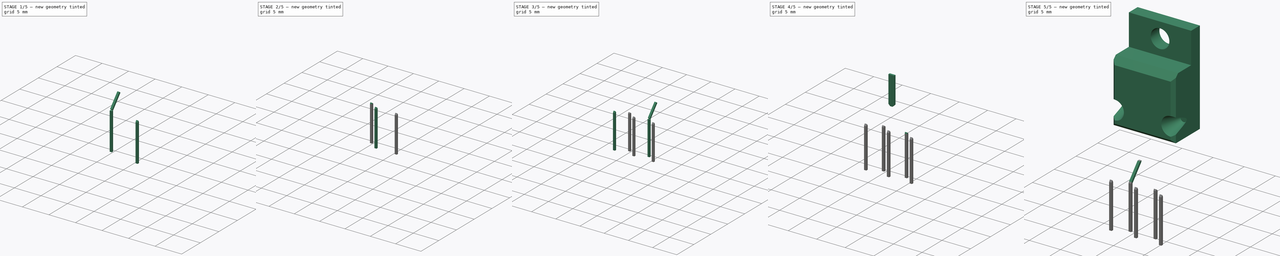
[diagram: build sequence overview — one tinted view per stage of 5, left to right]
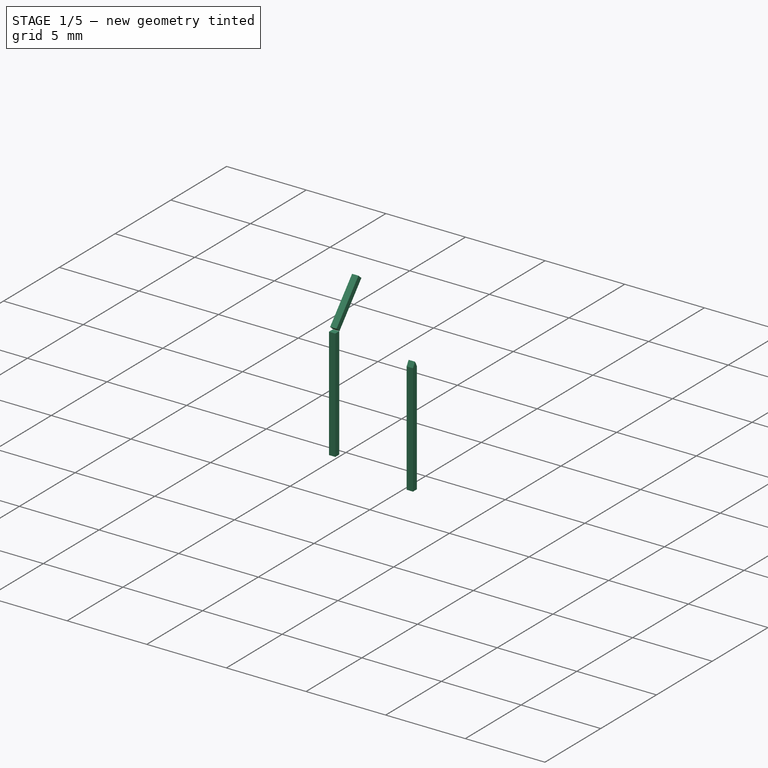
[diagram: stage 1 of 5 — iso view after this stage's code; geometry added in this stage tinted green]
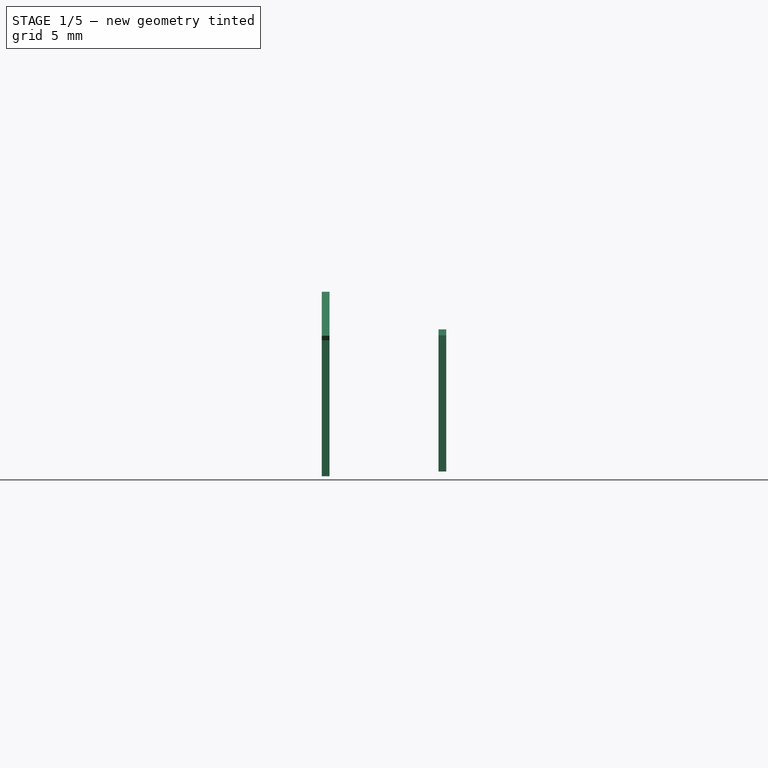
[diagram: stage 1 of 5 — front view after this stage's code; geometry added in this stage tinted green]
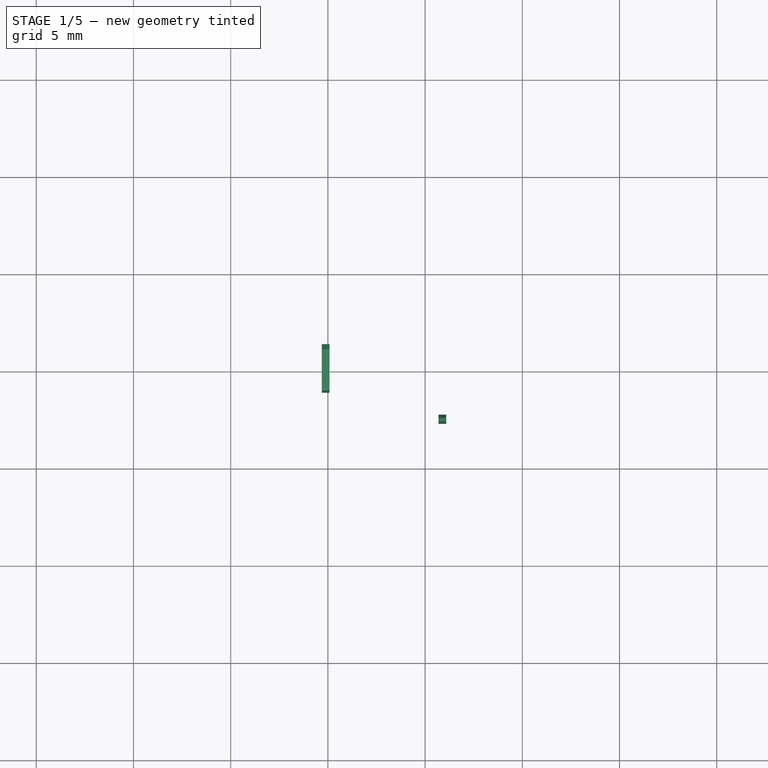
[diagram: stage 1 of 5 — top view after this stage's code; geometry added in this stage tinted green]
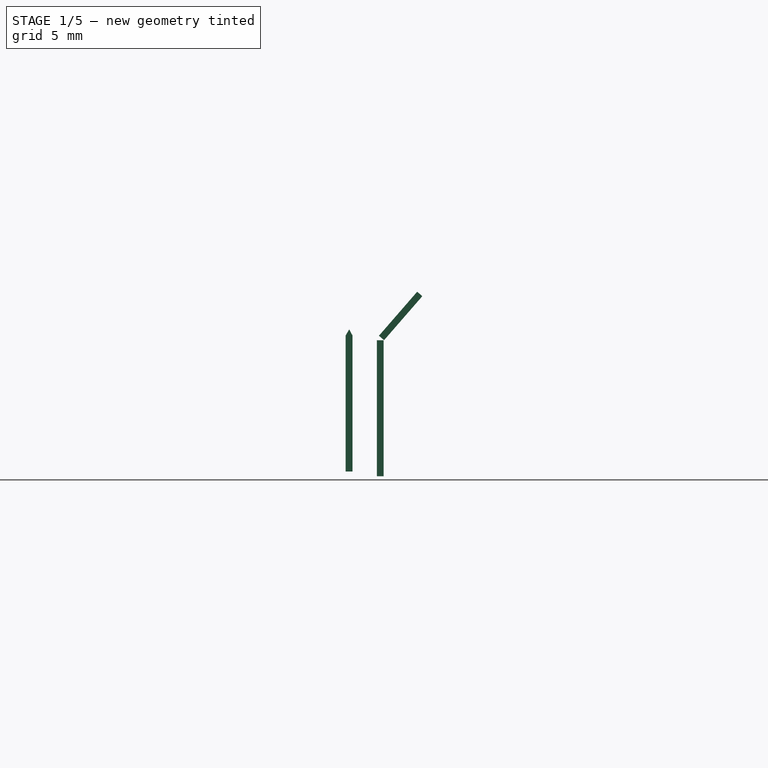
[diagram: stage 1 of 5 — right view after this stage's code; geometry added in this stage tinted green]
FCSTD DOCUMENT  (FreeCAD 1.0R39319 (Git))
Label: microshem(TDA2003)
License: All rights reserved
LicenseURL: https://en.wikipedia.org/wiki/All_rights_reserved
objects: PartDesign::Body×17, PartDesign::AdditiveBox×16, PartDesign::Chamfer×14, PartDesign::AdditiveLoft×10, PartDesign::SubtractiveCone×2, Sketcher::SketchObject×1, PartDesign::Pad×1
note: 148 computed .brp shape members not serialized (recipe doc carries the construction recipe); baked Part::Feature solids carry a one-line shape summary decoded from their .brp

FEATURE [PartDesign::Body] Body001  label="Тіло"
  AllowCompound = false
  Group = -> [Box,Chamfer,Chamfer001,Chamfer002,Chamfer003,Cone,Cone001]
  Origin = -> Origin001
  Tip = -> Cone001
FEATURE [PartDesign::AdditiveBox] Box001
  AttacherType = Attacher::AttachEngine3D
  AttachmentOffset = pos=(-4,-5,-1.5) rot=(0,0,1;0rad)
  AttachmentSupport = -> [Cone001]
  Height = 1
  Length = 0.35
  MapMode = 7
  Placement = pos=(-9.61401,-4,37.4328) rot=(0.57735,0.57735,0.57735;2.0944rad)
  Refine = true
  Suppressed = false
  Width = 5
FEATURE [PartDesign::Chamfer] Chamfer004
  Angle = 45
  Base = -> Box001 [Edge10]
  BaseFeature = -> Box001
  ChamferType = 0
  FlipDirection = false
  Placement = pos=(-9.61401,-4,37.4328) rot=(0.57735,0.57735,0.57735;2.0944rad)
  Refine = true
  Size = 0.3
  Size2 = 1
  SupportTransform = false
  Suppressed = false
  UseAllEdges = false
FEATURE [PartDesign::Chamfer] Chamfer005
  Angle = 45
  Base = -> Chamfer004 [Edge8]
  BaseFeature = -> Chamfer004
  ChamferType = 0
  FlipDirection = false
  Placement = pos=(-9.61401,-4,37.4328) rot=(0.57735,0.57735,0.57735;2.0944rad)
  Refine = true
  Size = 0.3
  Size2 = 1
  SupportTransform = false
  Suppressed = false
  UseAllEdges = false
FEATURE [PartDesign::Body] Body008  label="Тіло007"
  AllowCompound = false
  Group = -> [Box007,AdditiveLoft001]
  Origin = -> Origin008
  Tip = -> AdditiveLoft001
FEATURE [PartDesign::AdditiveBox] Box008
  AttacherType = Attacher::AttachEngine3D
  AttachmentOffset = pos=(0,0.3,0) rot=(0,-1,0;1.06465rad)
  AttachmentSupport = -> [Chamfer005]
  Height = 4
  Length = 0.35
  MapMode = 5
  Placement = pos=(-9.31401,-4,37.4328) rot=(0.652748,0.652748,-0.384498;2.40745rad)
  Refine = true
  Suppressed = false
  Width = 0.4
FEATURE [PartDesign::AdditiveLoft] AdditiveLoft002
  BaseFeature = -> Box008
  Closed = false
  Placement = pos=(-9.31401,-4,37.4328) rot=(0.652748,0.652748,-0.384498;2.40745rad)
  Profile = -> Box008 [Face5]
  Refine = true
  Ruled = false
  Sections = -> [Chamfer005]
  Suppressed = false
FEATURE [PartDesign::Body] Body009  label="Тіло008"
  AllowCompound = false
  Group = -> [Box008,AdditiveLoft002]
  Origin = -> Origin009
FEATURE [PartDesign::AdditiveBox] Box010
  AttacherType = Attacher::AttachEngine3D
  AttachmentOffset = pos=(0.35,0,-0.4) rot=(0,0,-1;2.42601rad)
  AttachmentSupport = -> [Chamfer011]
  Height = 0.4
  Length = 0.35
  MapMode = 7
  Placement = pos=(-14.914,-4,37.4328) rot=(0.673025,0.306715,-0.673025;3.7368rad)
  Refine = true
  Suppressed = false
  Width = 3
FEATURE [PartDesign::Body] Body014  label="Тіло013"
  AllowCompound = false
  Group = -> [Box014,AdditiveLoft008]
  Origin = -> Origin014
  Tip = -> AdditiveLoft008
FEATURE [PartDesign::AdditiveBox] Box015
  AttacherType = Attacher::AttachEngine3D
  AttachmentOffset = pos=(-0.37,-7,-0.4) rot=(0,0,1;0rad)
  AttachmentSupport = -> [Box010]
  Height = 0.4
  Length = 0.35
  MapMode = 7
  Placement = pos=(-15.314,-6.07403,27.9391) rot=(0.57735,0.57735,0.57735;2.0944rad)
  Refine = true
  Suppressed = false
  Width = 7
FEATURE [PartDesign::Body] Body015  label="Тіло014"
  AllowCompound = false
  Group = -> [Box015,AdditiveLoft009]
  Origin = -> Origin015
  Tip = -> AdditiveLoft009
FEATURE [PartDesign::AdditiveBox] Box016
  AttacherType = Attacher::AttachEngine3D
  AttachmentOffset = pos=(0,-7,-0.4) rot=(0,0,1;0rad)
  AttachmentSupport = -> [AdditiveLoft002]
  Height = 0.4
  Length = 0.35
  MapMode = 7
  Placement = pos=(-8.91401,-7.3288,28.1875) rot=(0.57735,-0.57735,-0.57735;2.0944rad)
  Refine = true
  Suppressed = false
  Width = 7
FEATURE [PartDesign::AdditiveLoft] AdditiveLoft010
  BaseFeature = -> Box016
  Closed = false
  Placement = pos=(-8.91401,-7.3288,28.1875) rot=(0.57735,-0.57735,-0.57735;2.0944rad)
  Profile = -> Box016 [Face4]
  Refine = true
  Ruled = false
  Sections = -> [AdditiveLoft002]
  Suppressed = false
FEATURE [PartDesign::Body] Body016  label="Тіло015"
  AllowCompound = false
  Group = -> [Box016,AdditiveLoft010]
  Origin = -> Origin016
  Tip = -> AdditiveLoft010
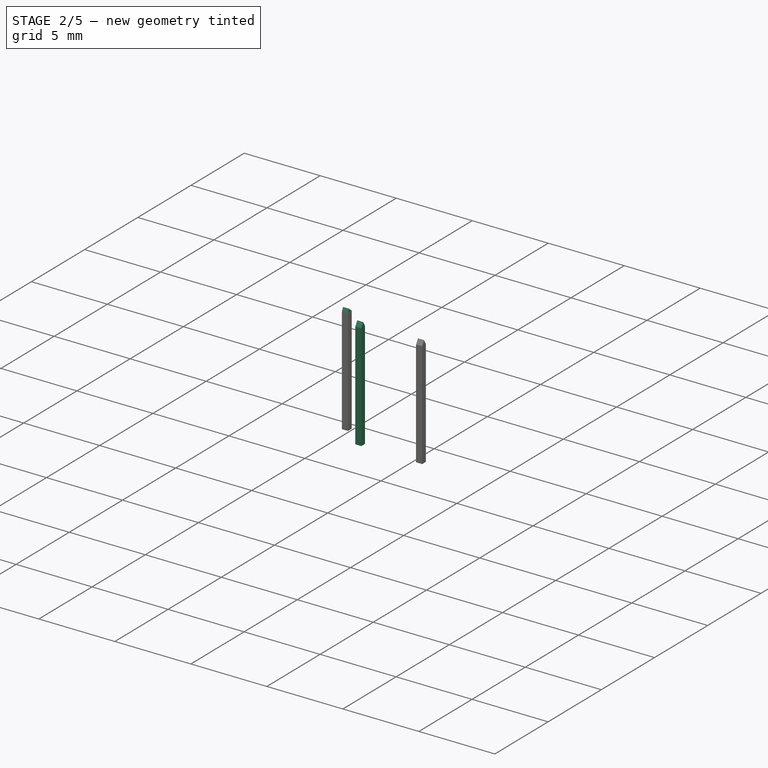
[diagram: stage 2 of 5 — iso view after this stage's code; geometry added in this stage tinted green]
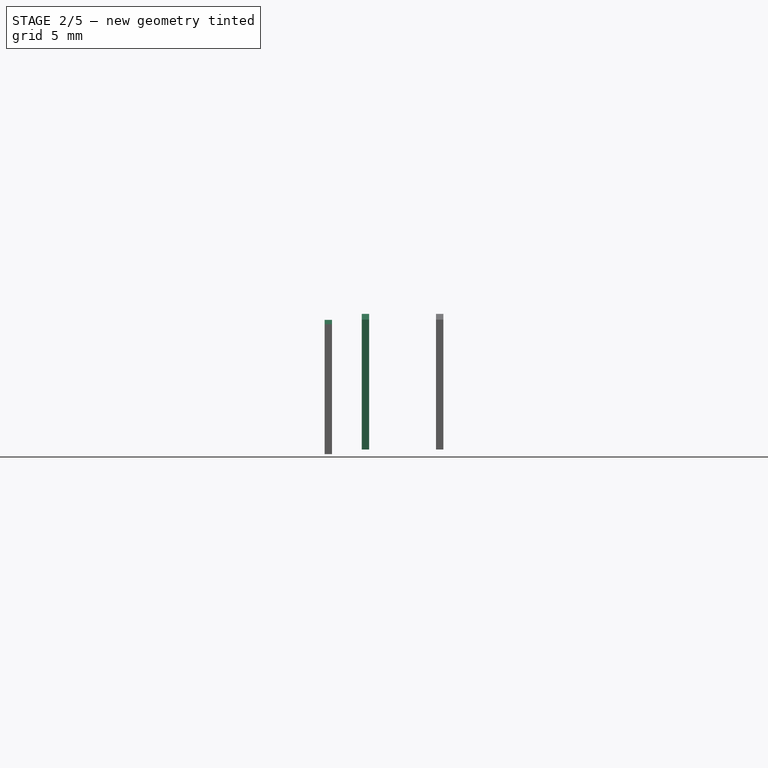
[diagram: stage 2 of 5 — front view after this stage's code; geometry added in this stage tinted green]
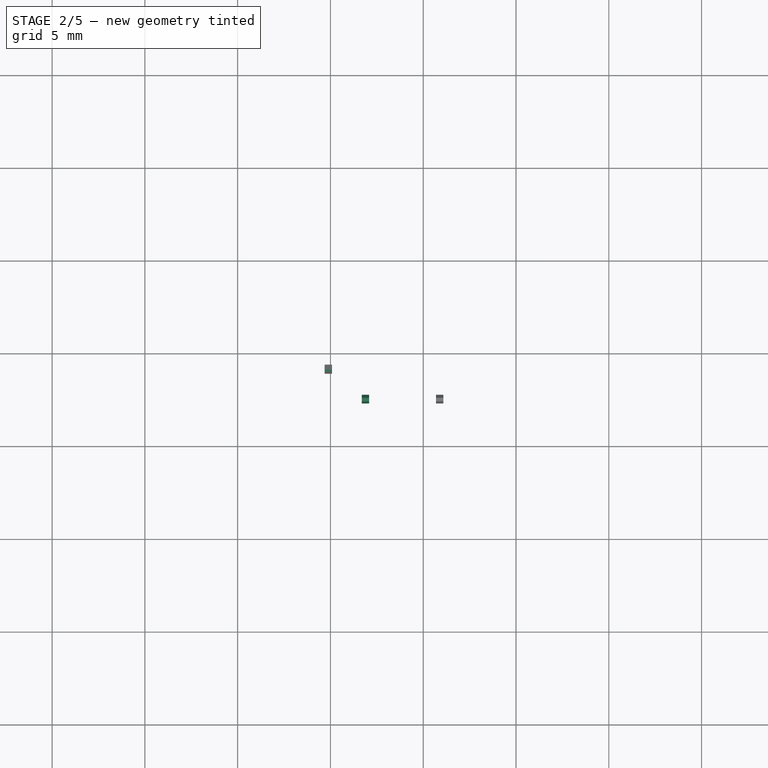
[diagram: stage 2 of 5 — top view after this stage's code; geometry added in this stage tinted green]
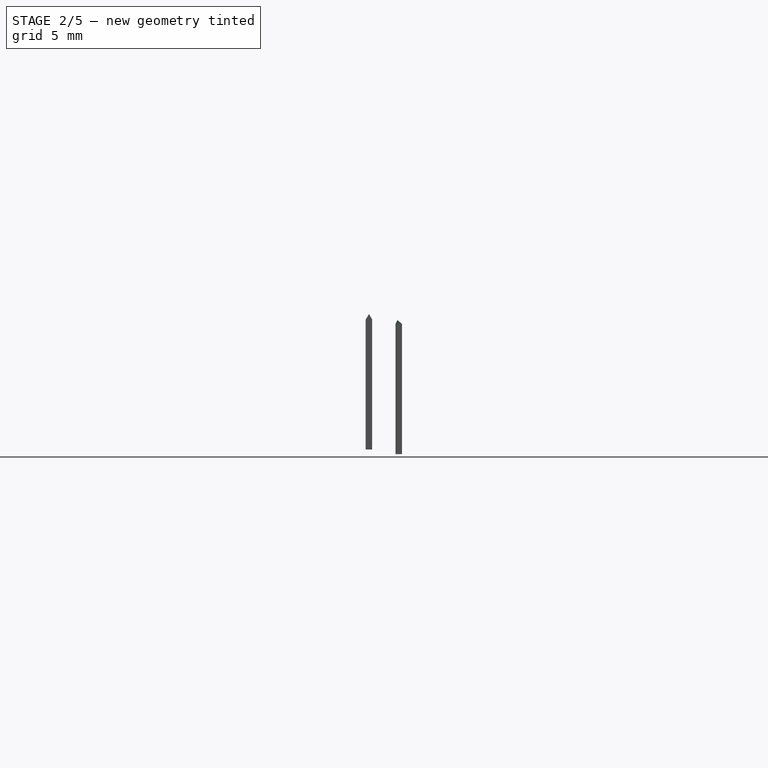
[diagram: stage 2 of 5 — right view after this stage's code; geometry added in this stage tinted green]
FEATURE [PartDesign::Body] Body003  label="Тіло002"
  AllowCompound = false
  Group = -> [Box002,Chamfer006,Chamfer007]
  Origin = -> Origin003
  Tip = -> Chamfer007
FEATURE [PartDesign::AdditiveBox] Box003
  AttacherType = Attacher::AttachEngine3D
  AttachmentOffset = pos=(0,-2,-0.35) rot=(0,0,1;0rad)
  AttachmentSupport = -> [Chamfer007]
  Height = 0.35
  Length = 5
  MapMode = 5
  Placement = pos=(-13.614,-4,37.4328) rot=(0.57735,0.57735,0.57735;4.18879rad)
  Refine = true
  Suppressed = false
  Width = 1
FEATURE [PartDesign::Chamfer] Chamfer008
  Angle = 45
  Base = -> Box003 [Edge1]
  BaseFeature = -> Box003
  ChamferType = 0
  FlipDirection = false
  Placement = pos=(-13.614,-4,37.4328) rot=(0.57735,0.57735,0.57735;4.18879rad)
  Refine = true
  Size = 0.3
  Size2 = 1
  SupportTransform = false
  Suppressed = false
  UseAllEdges = false
FEATURE [PartDesign::Chamfer] Chamfer009
  Angle = 45
  Base = -> Chamfer008 [Edge3]
  BaseFeature = -> Chamfer008
  ChamferType = 0
  FlipDirection = false
  Placement = pos=(-13.614,-4,37.4328) rot=(0.57735,0.57735,0.57735;4.18879rad)
  Refine = true
  Size = 0.3
  Size2 = 1
  SupportTransform = false
  Suppressed = false
  UseAllEdges = false
FEATURE [PartDesign::Body] Body007  label="Тіло006"
  AllowCompound = false
  Group = -> [Box006,AdditiveLoft]
  Origin = -> Origin007
  Tip = -> AdditiveLoft
FEATURE [PartDesign::AdditiveBox] Box007
  AttacherType = Attacher::AttachEngine3D
  AttachmentOffset = pos=(-2.7,0,0) rot=(1,0,0;1.06465rad)
  AttachmentSupport = -> [Chamfer011]
  Height = 4
  Length = 0.4
  MapMode = 5
  Placement = pos=(-12.914,-4,37.4328) rot=(0,0.861629,-0.507538;3.14159rad)
  Refine = true
  Suppressed = false
  Width = 0.35
FEATURE [PartDesign::AdditiveLoft] AdditiveLoft001
  BaseFeature = -> Box007
  Closed = false
  Placement = pos=(-12.914,-4,37.4328) rot=(0,0.861629,-0.507538;3.14159rad)
  Profile = -> Box007 [Face5]
  Refine = true
  Ruled = false
  Sections = -> [Chamfer009]
  Suppressed = false
FEATURE [PartDesign::Body] Body013  label="Тіло012"
  AllowCompound = false
  Group = -> [Box013,AdditiveLoft007]
  Origin = -> Origin013
  Tip = -> AdditiveLoft007
FEATURE [PartDesign::AdditiveBox] Box014
  AttacherType = Attacher::AttachEngine3D
  AttachmentOffset = pos=(-0.35,-7,-0.4) rot=(0,0,1;0rad)
  AttachmentSupport = -> [AdditiveLoft001]
  Height = 0.4
  Length = 0.35
  MapMode = 7
  Placement = pos=(-13.314,-7.6788,28.1875) rot=(0.57735,0.57735,0.57735;2.0944rad)
  Refine = true
  Suppressed = false
  Width = 7
FEATURE [PartDesign::AdditiveLoft] AdditiveLoft008
  BaseFeature = -> Box014
  Closed = false
  Placement = pos=(-13.314,-7.6788,28.1875) rot=(0.57735,0.57735,0.57735;2.0944rad)
  Profile = -> Box014 [Face4]
  Refine = true
  Ruled = false
  Sections = -> [AdditiveLoft001]
  Suppressed = false
FEATURE [PartDesign::AdditiveLoft] AdditiveLoft009
  BaseFeature = -> Box015
  Closed = false
  Placement = pos=(-15.314,-6.07403,27.9391) rot=(0.57735,0.57735,0.57735;2.0944rad)
  Profile = -> Box015 [Face4]
  Refine = true
  Ruled = false
  Sections = -> [Box010]
  Suppressed = false
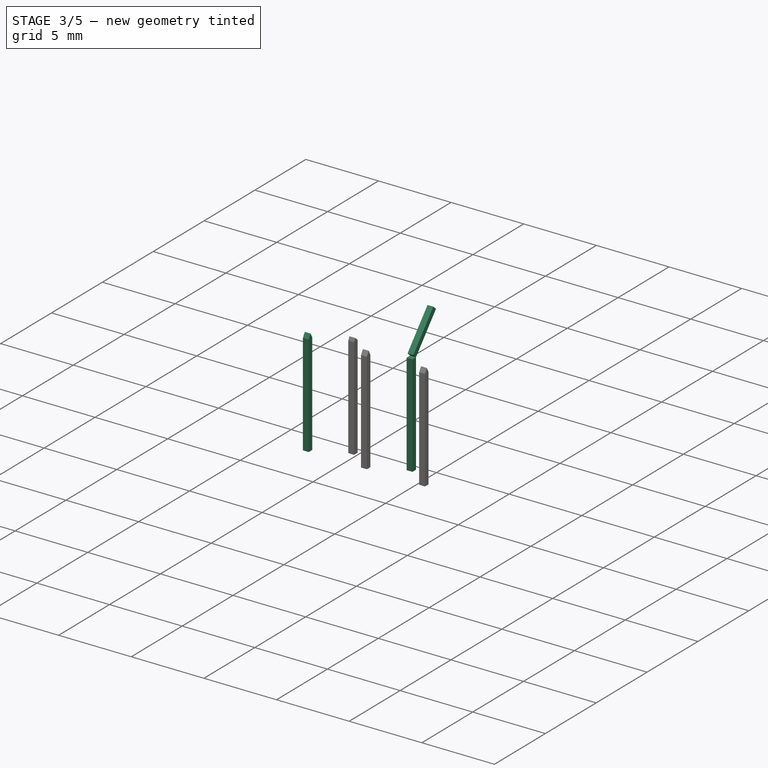
[diagram: stage 3 of 5 — iso view after this stage's code; geometry added in this stage tinted green]
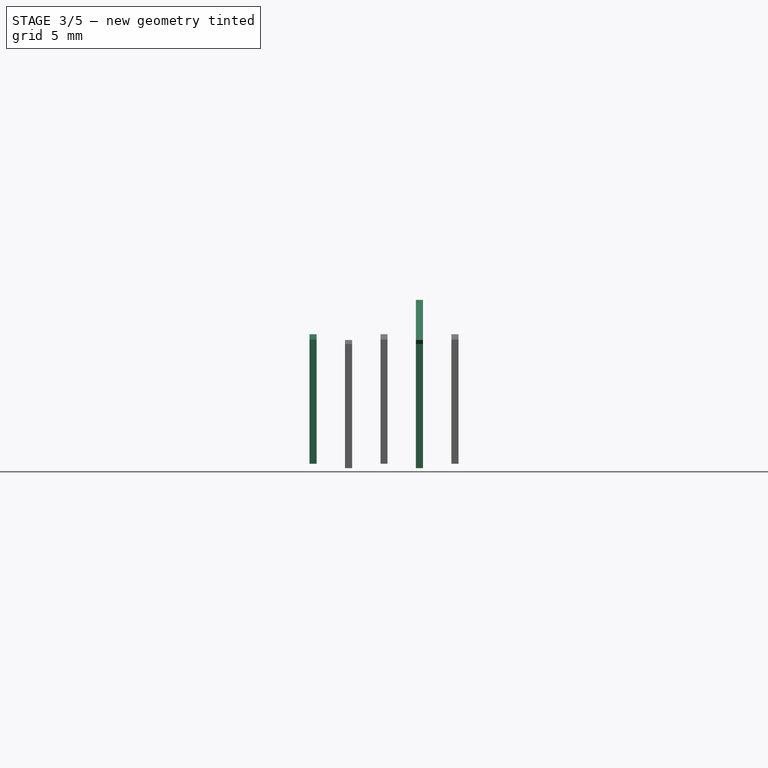
[diagram: stage 3 of 5 — front view after this stage's code; geometry added in this stage tinted green]
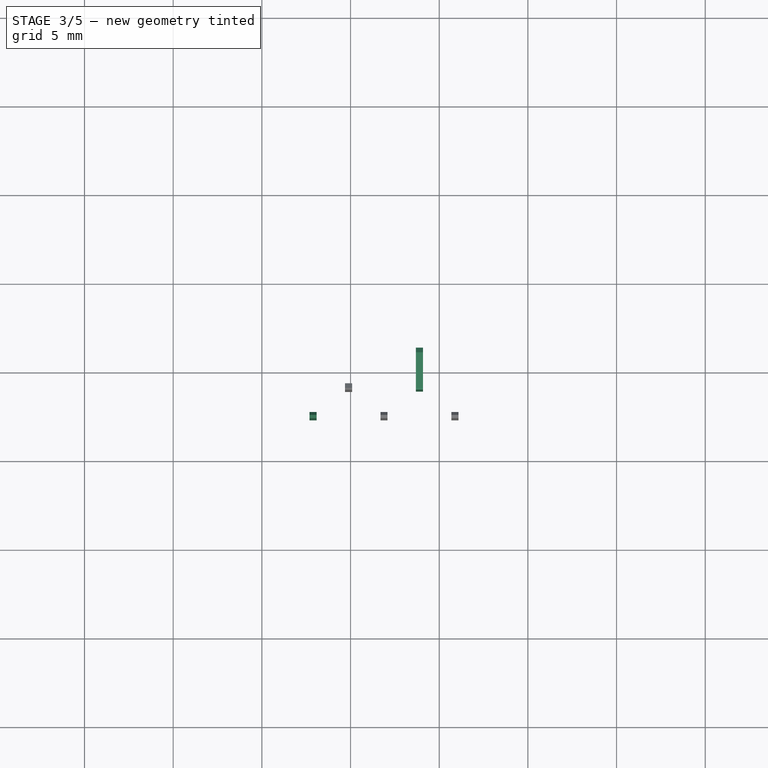
[diagram: stage 3 of 5 — top view after this stage's code; geometry added in this stage tinted green]
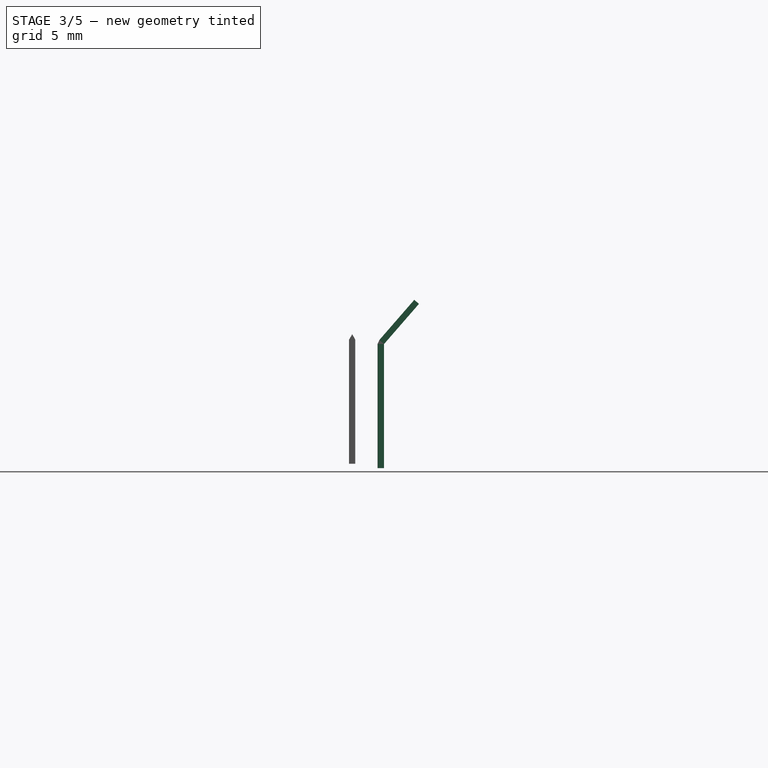
[diagram: stage 3 of 5 — right view after this stage's code; geometry added in this stage tinted green]
FEATURE [PartDesign::Body] Body005  label="Тіло004"
  AllowCompound = false
  Group = -> [Box004,Chamfer010,Chamfer011]
  Origin = -> Origin005
  Tip = -> Chamfer011
FEATURE [PartDesign::AdditiveBox] Box005
  AttacherType = Attacher::AttachEngine3D
  AttachmentOffset = pos=(0,-2,-0.35) rot=(0,0,1;0rad)
  AttachmentSupport = -> [Chamfer011]
  Height = 0.35
  Length = 5
  MapMode = 5
  Placement = pos=(-17.614,-4,37.4328) rot=(0.57735,0.57735,0.57735;4.18879rad)
  Refine = true
  Suppressed = false
  Width = 1
FEATURE [PartDesign::Chamfer] Chamfer012
  Angle = 45
  Base = -> Box005 [Edge1]
  BaseFeature = -> Box005
  ChamferType = 0
  FlipDirection = false
  Placement = pos=(-17.614,-4,37.4328) rot=(0.57735,0.57735,0.57735;4.18879rad)
  Refine = true
  Size = 0.3
  Size2 = 1
  SupportTransform = false
  Suppressed = false
  UseAllEdges = false
FEATURE [PartDesign::Chamfer] Chamfer013
  Angle = 45
  Base = -> Chamfer012 [Edge3]
  BaseFeature = -> Chamfer012
  ChamferType = 0
  FlipDirection = false
  Placement = pos=(-17.614,-4,37.4328) rot=(0.57735,0.57735,0.57735;4.18879rad)
  Refine = true
  Size = 0.3
  Size2 = 1
  SupportTransform = false
  Suppressed = false
  UseAllEdges = false
FEATURE [PartDesign::Body] Body006  label="Тіло005"
  AllowCompound = false
  Group = -> [Box005,Chamfer012,Chamfer013]
  Origin = -> Origin006
  Tip = -> Chamfer013
FEATURE [PartDesign::AdditiveBox] Box006
  AttacherType = Attacher::AttachEngine3D
  AttachmentOffset = pos=(-0.7,0,0) rot=(1,0,0;1.06465rad)
  AttachmentSupport = -> [Chamfer013]
  Height = 4
  Length = 0.4
  MapMode = 5
  Placement = pos=(-16.914,-4,37.4328) rot=(0,0.861629,-0.507538;3.14159rad)
  Refine = true
  Suppressed = false
  Width = 0.35
FEATURE [PartDesign::AdditiveLoft] AdditiveLoft
  BaseFeature = -> Box006
  Closed = false
  Placement = pos=(-16.914,-4,37.4328) rot=(0,0.861629,-0.507538;3.14159rad)
  Profile = -> Box006 [Face5]
  Refine = true
  Ruled = false
  Sections = -> [Chamfer013]
  Suppressed = false
FEATURE [PartDesign::Body] Body010  label="Тіло009"
  AllowCompound = false
  Group = -> [Box010,AdditiveLoft004]
  Origin = -> Origin010
  Tip = -> AdditiveLoft004
FEATURE [PartDesign::AdditiveBox] Box011
  AttacherType = Attacher::AttachEngine3D
  AttachmentOffset = pos=(-0.7,0,0) rot=(1,0,0;0.715585rad)
  AttachmentSupport = -> [Chamfer007]
  Height = 3
  Length = 0.4
  MapMode = 5
  Placement = pos=(-10.914,-4,37.4328) rot=(0,0.936672,-0.350207;3.14159rad)
  Refine = true
  Suppressed = false
  Width = 0.35
FEATURE [PartDesign::Body] Body011  label="Тіло010"
  AllowCompound = false
  Group = -> [Box011,AdditiveLoft005]
  Origin = -> Origin011
  Tip = -> AdditiveLoft005
FEATURE [PartDesign::AdditiveBox] Box012
  AttacherType = Attacher::AttachEngine3D
  AttachmentOffset = pos=(-0.35,-7,-0.4) rot=(0,0,1;0rad)
  AttachmentSupport = -> [AdditiveLoft005]
  Height = 0.4
  Length = 0.35
  MapMode = 7
  Placement = pos=(-11.314,-6.05403,27.9391) rot=(0.57735,0.57735,0.57735;2.0944rad)
  Refine = true
  Suppressed = false
  Width = 7
FEATURE [PartDesign::Body] Body012  label="Тіло011"
  AllowCompound = false
  Group = -> [Box012,AdditiveLoft006]
  Origin = -> Origin012
  Tip = -> AdditiveLoft006
FEATURE [PartDesign::AdditiveBox] Box013
  AttacherType = Attacher::AttachEngine3D
  AttachmentOffset = pos=(-0.35,-7,-0.4) rot=(0,0,1;0rad)
  AttachmentSupport = -> [AdditiveLoft]
  Height = 0.4
  Length = 0.35
  MapMode = 7
  Placement = pos=(-17.314,-7.6788,28.1875) rot=(0.57735,0.57735,0.57735;2.0944rad)
  Refine = true
  Suppressed = false
  Width = 7
FEATURE [PartDesign::AdditiveLoft] AdditiveLoft007
  BaseFeature = -> Box013
  Closed = false
  Placement = pos=(-17.314,-7.6788,28.1875) rot=(0.57735,0.57735,0.57735;2.0944rad)
  Profile = -> Box013 [Face4]
  Refine = true
  Ruled = false
  Sections = -> [AdditiveLoft]
  Suppressed = false
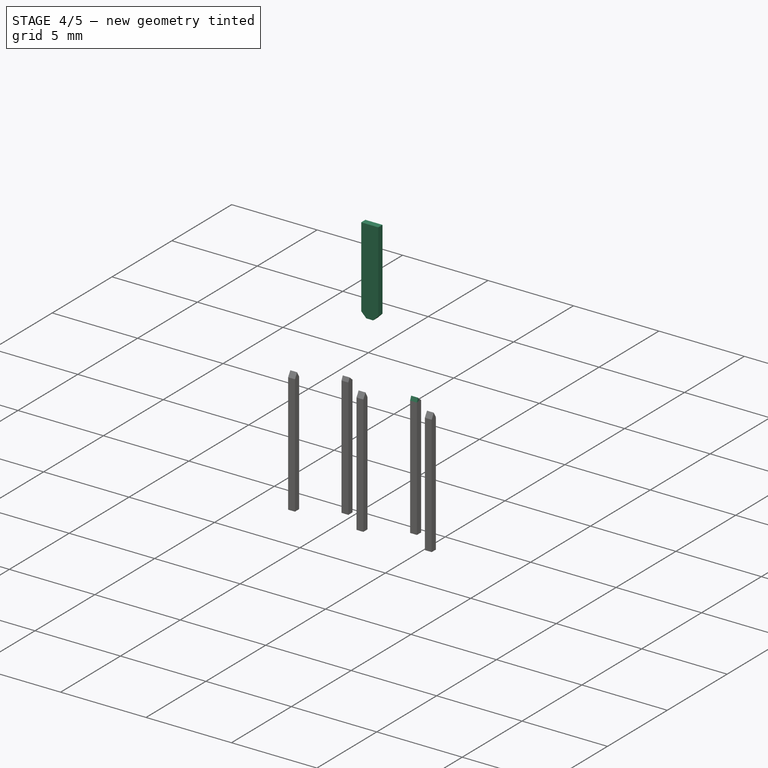
[diagram: stage 4 of 5 — iso view after this stage's code; geometry added in this stage tinted green]
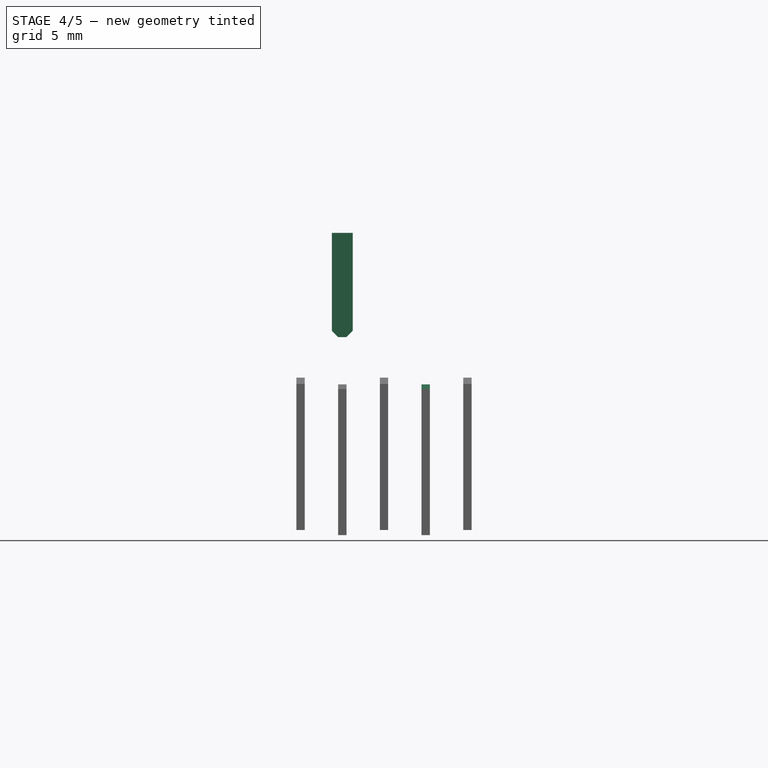
[diagram: stage 4 of 5 — front view after this stage's code; geometry added in this stage tinted green]
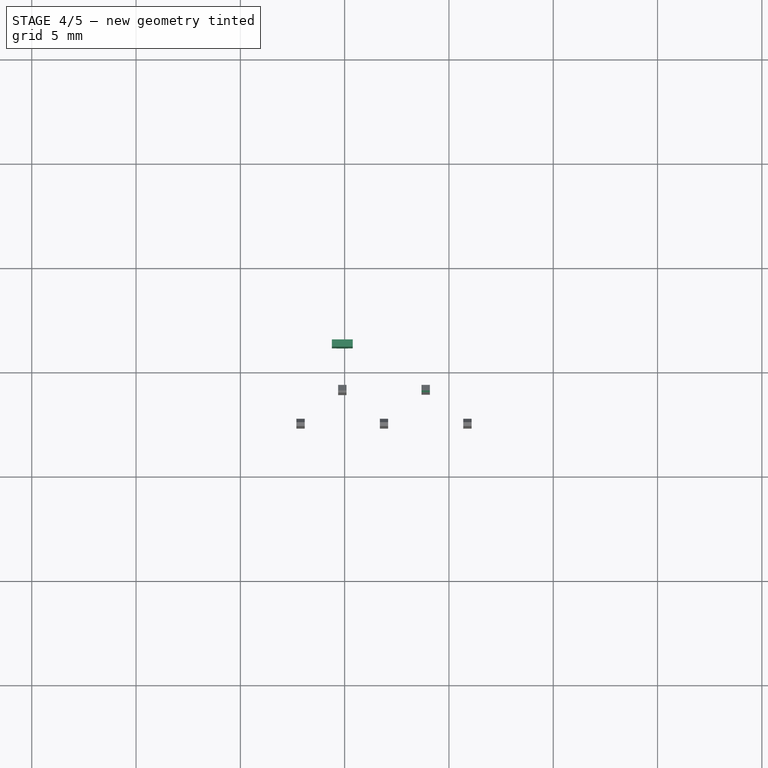
[diagram: stage 4 of 5 — top view after this stage's code; geometry added in this stage tinted green]
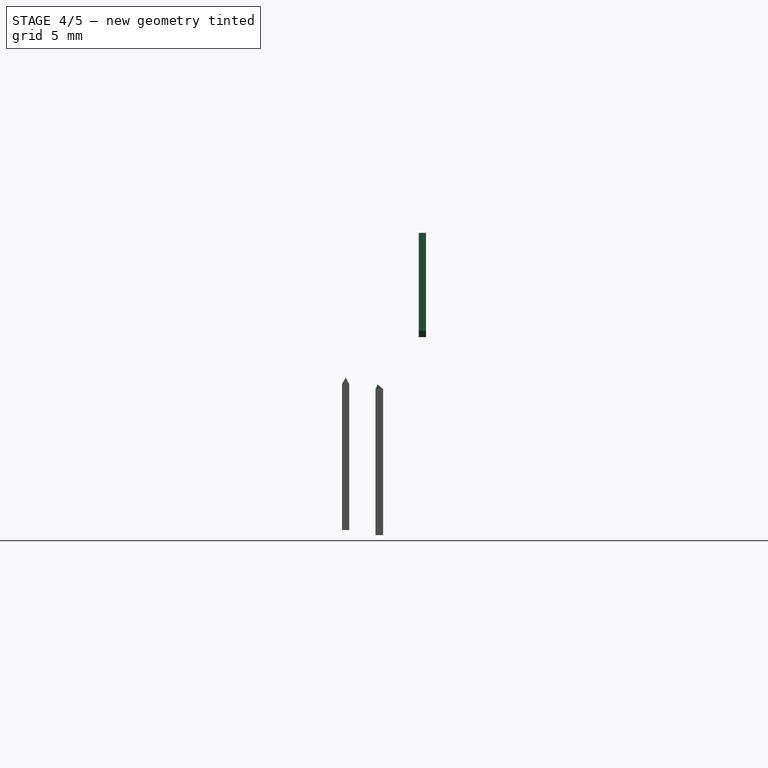
[diagram: stage 4 of 5 — right view after this stage's code; geometry added in this stage tinted green]
FEATURE [PartDesign::Body] Body002  label="Тіло001"
  AllowCompound = false
  Group = -> [Box001,Chamfer004,Chamfer005]
  Origin = -> Origin002
  Tip = -> Chamfer005
FEATURE [PartDesign::AdditiveBox] Box002
  AttacherType = Attacher::AttachEngine3D
  AttachmentOffset = pos=(0,-2,-0.35) rot=(0,0,1;0rad)
  AttachmentSupport = -> [Chamfer005]
  Height = 0.35
  Length = 5
  MapMode = 5
  Placement = pos=(-11.614,-4,37.4328) rot=(0.57735,0.57735,0.57735;4.18879rad)
  Refine = true
  Suppressed = false
  Width = 1
FEATURE [PartDesign::Chamfer] Chamfer006
  Angle = 45
  Base = -> Box002 [Edge1]
  BaseFeature = -> Box002
  ChamferType = 0
  FlipDirection = false
  Placement = pos=(-11.614,-4,37.4328) rot=(0.57735,0.57735,0.57735;4.18879rad)
  Refine = true
  Size = 0.3
  Size2 = 1
  SupportTransform = false
  Suppressed = false
  UseAllEdges = false
FEATURE [PartDesign::Chamfer] Chamfer007
  Angle = 45
  Base = -> Chamfer006 [Edge3]
  BaseFeature = -> Chamfer006
  ChamferType = 0
  FlipDirection = false
  Placement = pos=(-11.614,-4,37.4328) rot=(0.57735,0.57735,0.57735;4.18879rad)
  Refine = true
  Size = 0.3
  Size2 = 1
  SupportTransform = false
  Suppressed = false
  UseAllEdges = false
FEATURE [PartDesign::Body] Body004  label="Тіло003"
  AllowCompound = false
  Group = -> [Box003,Chamfer008,Chamfer009]
  Origin = -> Origin004
  Tip = -> Chamfer009
FEATURE [PartDesign::AdditiveBox] Box004
  AttacherType = Attacher::AttachEngine3D
  AttachmentOffset = pos=(0,-2,-0.35) rot=(0,0,1;0rad)
  AttachmentSupport = -> [Chamfer009]
  Height = 0.35
  Length = 5
  MapMode = 5
  Placement = pos=(-15.614,-4,37.4328) rot=(0.57735,0.57735,0.57735;4.18879rad)
  Refine = true
  Suppressed = false
  Width = 1
FEATURE [PartDesign::Chamfer] Chamfer010
  Angle = 45
  Base = -> Box004 [Edge1]
  BaseFeature = -> Box004
  ChamferType = 0
  FlipDirection = false
  Placement = pos=(-15.614,-4,37.4328) rot=(0.57735,0.57735,0.57735;4.18879rad)
  Refine = true
  Size = 0.3
  Size2 = 1
  SupportTransform = false
  Suppressed = false
  UseAllEdges = false
FEATURE [PartDesign::Chamfer] Chamfer011
  Angle = 45
  Base = -> Chamfer010 [Edge3]
  BaseFeature = -> Chamfer010
  ChamferType = 0
  FlipDirection = false
  Placement = pos=(-15.614,-4,37.4328) rot=(0.57735,0.57735,0.57735;4.18879rad)
  Refine = true
  Size = 0.3
  Size2 = 1
  SupportTransform = false
  Suppressed = false
  UseAllEdges = false
FEATURE [PartDesign::AdditiveLoft] AdditiveLoft005
  BaseFeature = -> Box011
  Closed = false
  Placement = pos=(-10.914,-4,37.4328) rot=(0,0.936672,-0.350207;3.14159rad)
  Profile = -> Box011 [Face5]
  Refine = true
  Ruled = false
  Sections = -> [Chamfer007]
  Suppressed = false
FEATURE [PartDesign::AdditiveLoft] AdditiveLoft006
  BaseFeature = -> Box012
  Closed = false
  Placement = pos=(-11.314,-6.05403,27.9391) rot=(0.57735,0.57735,0.57735;2.0944rad)
  Profile = -> Box012 [Face4]
  Refine = true
  Ruled = false
  Sections = -> [AdditiveLoft005]
  Suppressed = false
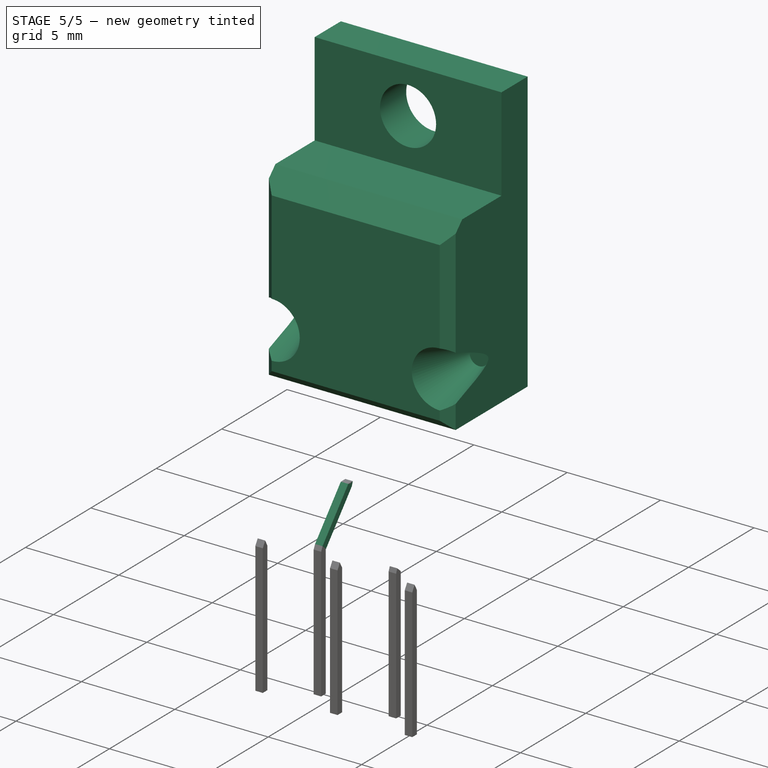
[diagram: stage 5 of 5 — iso view after this stage's code; geometry added in this stage tinted green]
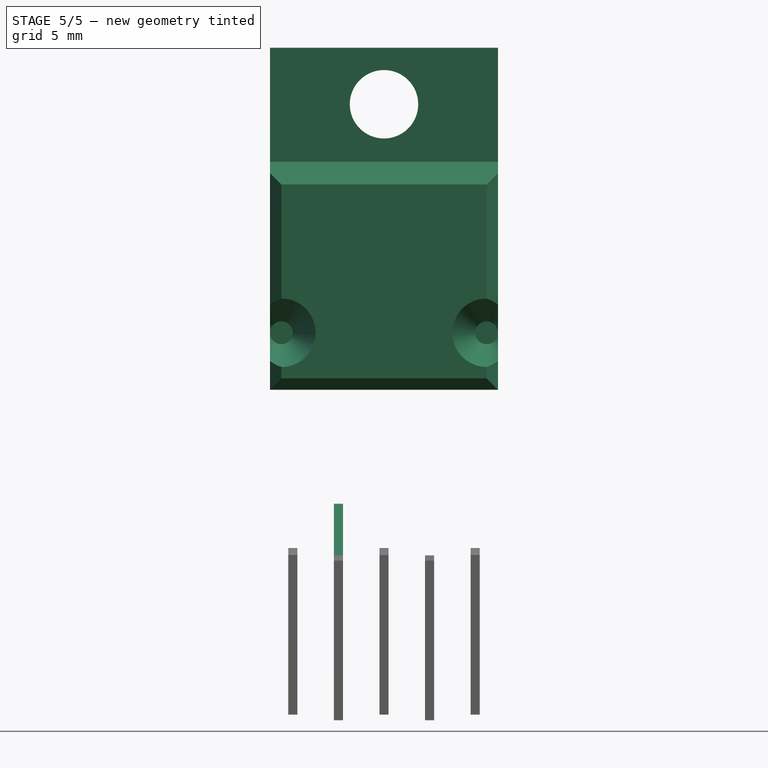
[diagram: stage 5 of 5 — front view after this stage's code; geometry added in this stage tinted green]
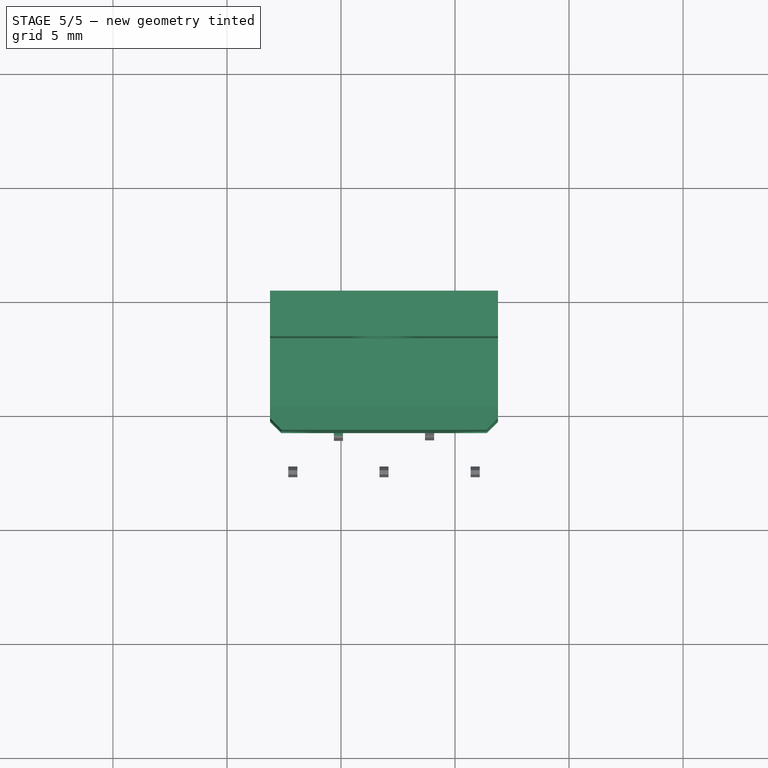
[diagram: stage 5 of 5 — top view after this stage's code; geometry added in this stage tinted green]
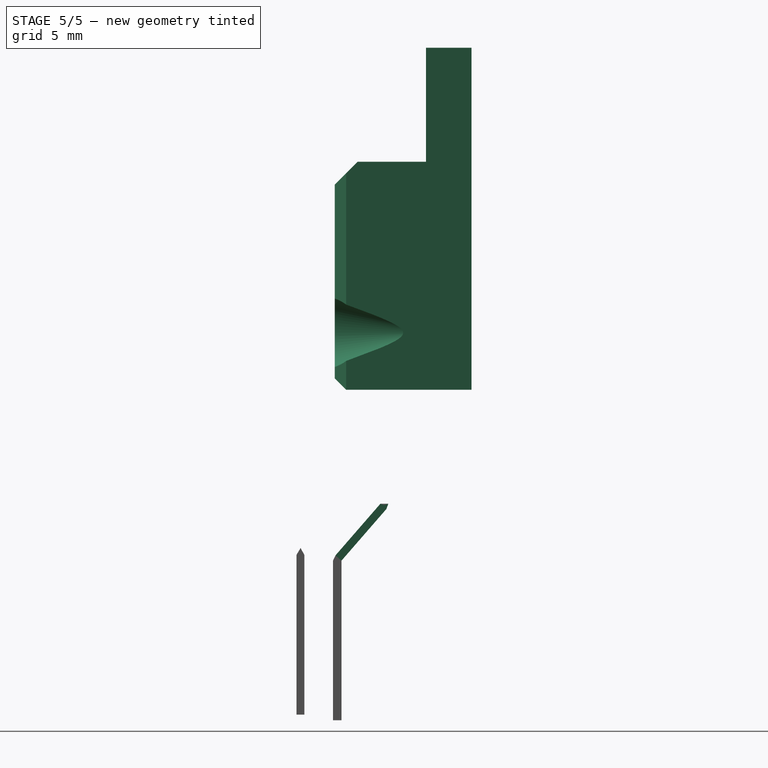
[diagram: stage 5 of 5 — right view after this stage's code; geometry added in this stage tinted green]
FEATURE [Sketcher::SketchObject] Sketch
  ArcFitTolerance = 1e-06
  AttachmentSupport = -> [XZ_Plane]
  FullyConstrained = false
  MakeInternals = false
  MapMode = 5
  Placement = pos=(0,0,0) rot=(1,0,0;1.5708rad)
  sketch-geometry (7):
    g0: LineSegment StartX=-18.114 StartY=57.4328 StartZ=0 EndX=-18.114 EndY=42.4328 EndZ=0
    g1: LineSegment StartX=-18.114 StartY=42.4328 StartZ=0 EndX=-8.11401 EndY=42.4328 EndZ=0
    g2: LineSegment StartX=-8.11401 StartY=42.4328 StartZ=0 EndX=-8.11401 EndY=57.4328 EndZ=0
    g3: LineSegment StartX=-8.11401 StartY=57.4328 StartZ=0 EndX=-18.114 EndY=57.4328 EndZ=0
    g4: LineSegment [constr] StartX=-18.114 StartY=57.4328 StartZ=0 EndX=-13.114 EndY=57.4328 EndZ=0
    g5: LineSegment [constr] StartX=-13.114 StartY=57.4328 StartZ=0 EndX=-13.114 EndY=42.4328 EndZ=0
    g6: Circle CenterX=-13.114 CenterY=54.9535 CenterZ=0 NormalX=0 NormalY=0 NormalZ=1 AngleXU=0 Radius=1.5
  constraints (16):
    c: Coincident(g0,g1)
    c: Coincident(g1,g2)
    c: Coincident(g2,g3)
    c: Coincident(g3,g0)
    c: Vertical(g0)
    c: Vertical(g2)
    c: Horizontal(g1)
    c: Horizontal(g3)
    c: Distance(g0,g2) = 10
    c: Distance(g1,g3) = 15
    c: Coincident(g4,g0)
    c: Symmetric(g3,g3,g4)
    c: Coincident(g5,g4)
    c: Symmetric(g1,g1,g5)
    c: Diameter(g6) = 3
    c: PointOnObject(g6,g5)
FEATURE [PartDesign::Pad] Pad
  Direction = (0,-1,2e-16)
  Length = 2
  Length2 = 10
  Placement = pos=(0,0,0) rot=(1,0,0;1.5708rad)
  Profile = -> Sketch
  ReferenceAxis = -> Sketch [N_Axis]
  Refine = true
  Suppressed = false
  Type = 0
FEATURE [PartDesign::Body] Body
  AllowCompound = false
  Group = -> [Sketch,Pad]
  Origin = -> Origin
  Tip = -> Pad
FEATURE [PartDesign::AdditiveBox] Box
  AttacherType = Attacher::AttachEngine3D
  AttachmentOffset = pos=(0,0,-10) rot=(0,0,1;0rad)
  AttachmentSupport = -> [Pad]
  Height = 10
  Length = 6
  MapMode = 7
  Placement = pos=(-8.11401,0,42.4328) rot=(0.57735,-0.57735,-0.57735;2.0944rad)
  Refine = true
  Suppressed = false
  Width = 10
FEATURE [PartDesign::Chamfer] Chamfer
  Angle = 45
  Base = -> Box [Edge7]
  BaseFeature = -> Box
  ChamferType = 0
  FlipDirection = false
  Placement = pos=(-8.11401,9.4e-15,42.4328) rot=(0.57735,-0.57735,-0.57735;2.0944rad)
  Refine = true
  Size = 1
  Size2 = 1
  SupportTransform = false
  Suppressed = false
  UseAllEdges = false
FEATURE [PartDesign::Chamfer] Chamfer001
  Angle = 45
  Base = -> Chamfer [Edge4]
  BaseFeature = -> Chamfer
  ChamferType = 0
  FlipDirection = false
  Placement = pos=(-8.11401,9.4e-15,42.4328) rot=(0.57735,-0.57735,-0.57735;2.0944rad)
  Refine = true
  Size = 0.5
  Size2 = 1
  SupportTransform = false
  Suppressed = false
  UseAllEdges = false
FEATURE [PartDesign::Chamfer] Chamfer002
  Angle = 45
  Base = -> Chamfer001 [Edge4]
  BaseFeature = -> Chamfer001
  ChamferType = 0
  FlipDirection = false
  Placement = pos=(-8.11401,9.4e-15,42.4328) rot=(0.57735,-0.57735,-0.57735;2.0944rad)
  Refine = true
  Size = 0.5
  Size2 = 1
  SupportTransform = false
  Suppressed = false
  UseAllEdges = false
FEATURE [PartDesign::Chamfer] Chamfer003
  Angle = 45
  Base = -> Chamfer002 [Edge4]
  BaseFeature = -> Chamfer002
  ChamferType = 0
  FlipDirection = false
  Placement = pos=(-8.11401,9.4e-15,42.4328) rot=(0.57735,-0.57735,-0.57735;2.0944rad)
  Refine = true
  Size = 0.5
  Size2 = 1
  SupportTransform = false
  Suppressed = false
  UseAllEdges = false
FEATURE [PartDesign::SubtractiveCone] Cone
  Angle = 360
  AttacherType = Attacher::AttachEngine3D
  AttachmentOffset = pos=(-0.5,2.5,-6) rot=(0,0,1;0rad)
  AttachmentSupport = -> [Chamfer003]
  BaseFeature = -> Chamfer003
  Height = 3
  MapMode = 7
  Placement = pos=(-17.614,-6,44.9328) rot=(0,0.707107,0.707107;3.14159rad)
  Radius1 = 1.5
  Radius2 = 0.5
  Refine = true
  Suppressed = false
FEATURE [PartDesign::SubtractiveCone] Cone001
  Angle = 360
  AttacherType = Attacher::AttachEngine3D
  AttachmentOffset = pos=(0.5,2.5,-6) rot=(0,0,1;0rad)
  AttachmentSupport = -> [Cone]
  BaseFeature = -> Cone
  Height = 3
  MapMode = 7
  Placement = pos=(-8.61401,-6,44.9328) rot=(0,0.707107,0.707107;3.14159rad)
  Radius1 = 1.5
  Radius2 = 0.5
  Refine = true
  Suppressed = false
FEATURE [PartDesign::AdditiveLoft] AdditiveLoft004
  BaseFeature = -> Box010
  Closed = false
  Placement = pos=(-14.914,-4,37.4328) rot=(0.673025,0.306715,-0.673025;3.7368rad)
  Profile = -> Box010 [Face3]
  Refine = true
  Ruled = false
  Sections = -> [Chamfer011]
  Suppressed = false
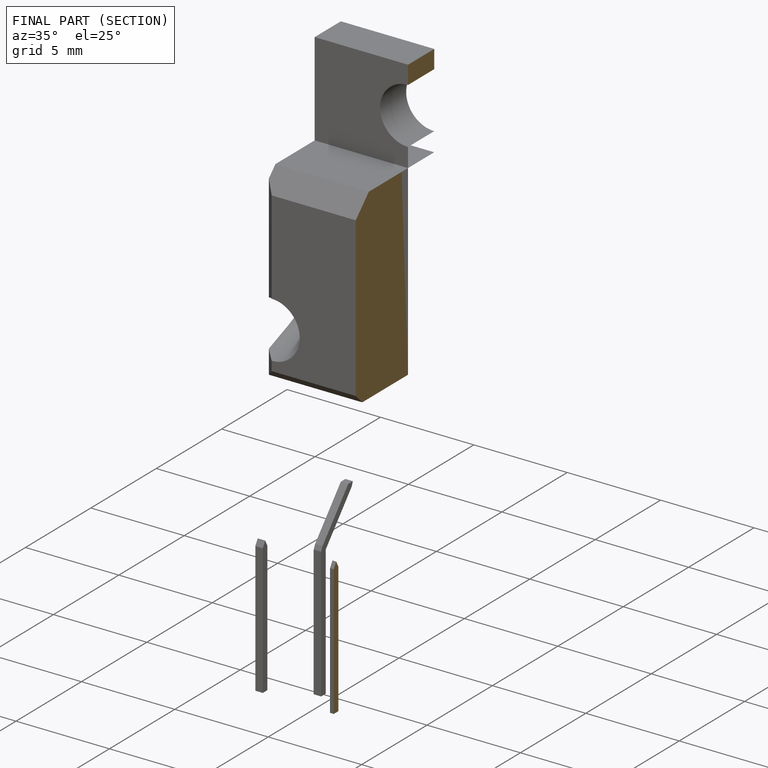
[diagram: finished part — half-section view (interior)]
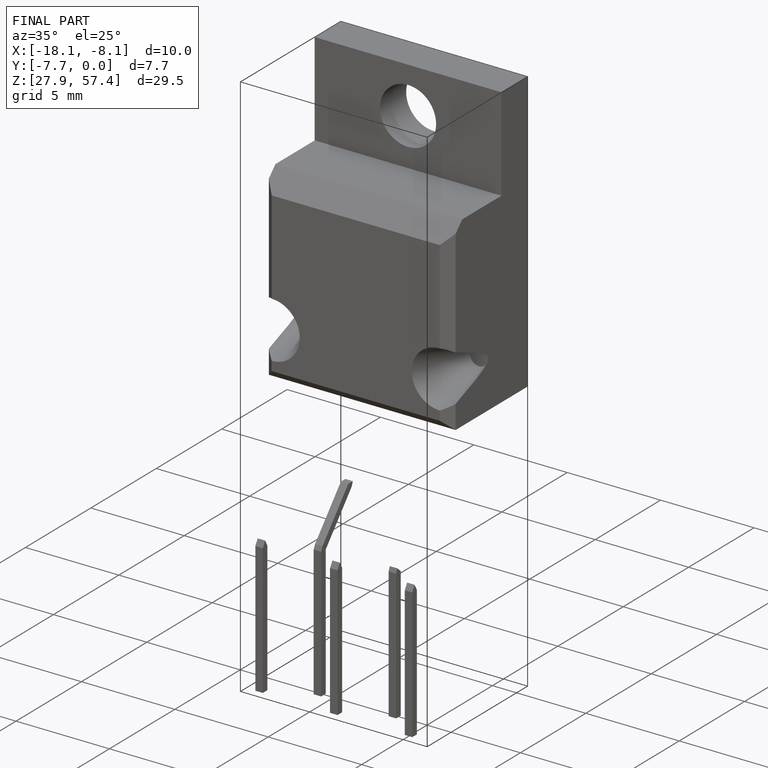
[diagram: finished part — iso view with bounding-box wireframe]
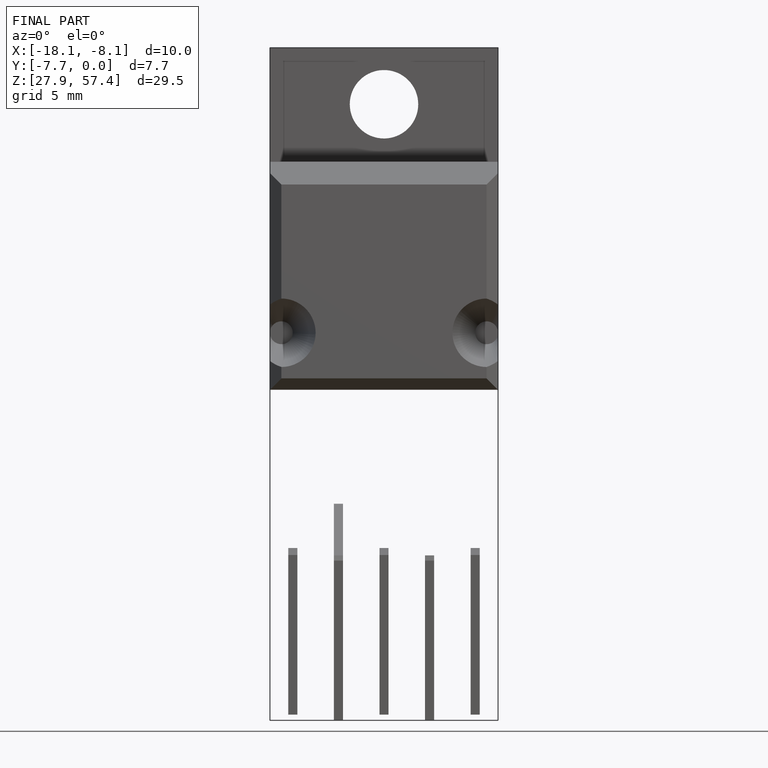
[diagram: finished part — front view with bounding-box wireframe]
